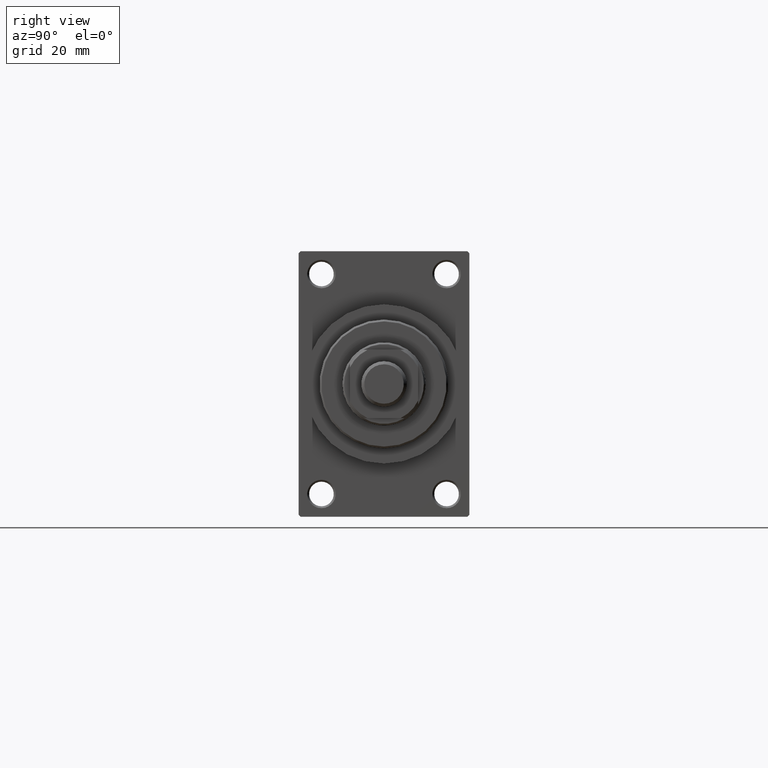
[diagram: clean part render]
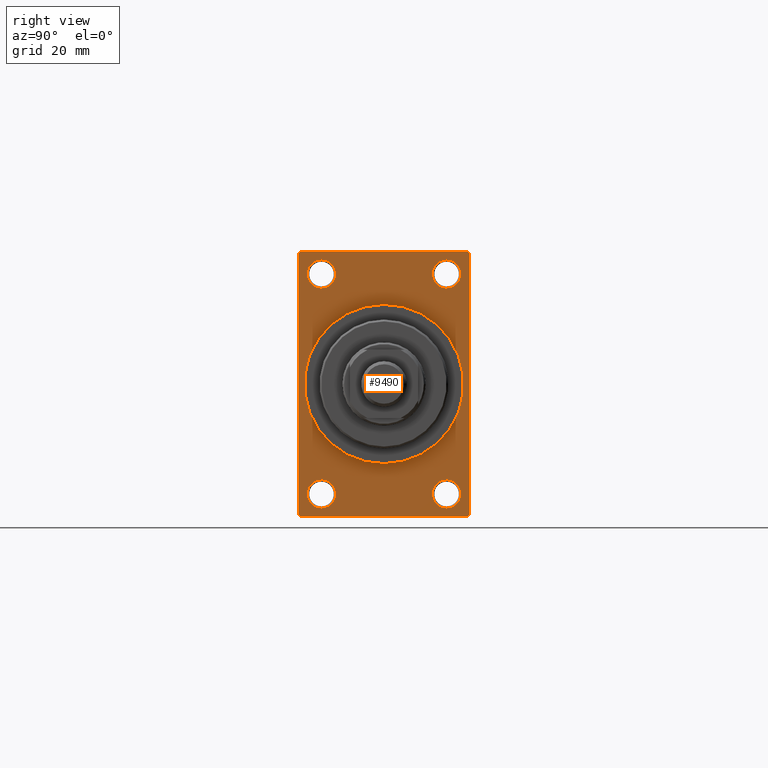
[diagram: same view with one face highlighted and labeled with its STEP entity id]
A machine part, right view. The second image highlights one B-rep face of the part: STEP entity #9490.
In plain terms, the highlighted planar face has unit normal (-1, 0, 0).
Its self-contained STEP definition (entity closure, byte-faithful):
#12 = VECTOR ( 'NONE', #12271, 1000.000000000000000 ) ;
#63 = ORIENTED_EDGE ( 'NONE', *, *, #22220, .T. ) ;
#110 = DIRECTION ( 'NONE',  ( 0.000000000000000000, 0.000000000000000000, 1.000000000000000000 ) ) ;
#245 = DIRECTION ( 'NONE',  ( 0.000000000000000000, 0.000000000000000000, 1.000000000000000000 ) ) ;
#655 = CIRCLE ( 'NONE', #41425, 3.750000000000076383 ) ;
#1733 = CARTESIAN_POINT ( 'NONE',  ( 113.0000000000000142, 0.000000000000000000, 21.00000000000000000 ) ) ;
#1816 = AXIS2_PLACEMENT_3D ( 'NONE', #40690, #18522, #245 ) ;
#2661 = FACE_BOUND ( 'NONE', #28646, .T. ) ;
#3254 = ORIENTED_EDGE ( 'NONE', *, *, #44429, .F. ) ;
#3475 = ORIENTED_EDGE ( 'NONE', *, *, #36655, .T. ) ;
#3702 = EDGE_CURVE ( 'NONE', #28383, #31641, #9673, .T. ) ;
#4493 = ORIENTED_EDGE ( 'NONE', *, *, #20289, .T. ) ;
#4852 = CARTESIAN_POINT ( 'NONE',  ( 113.0000000000000142, 0.000000000000000000, 0.000000000000000000 ) ) ;
#5793 = DIRECTION ( 'NONE',  ( -1.000000000000000000, 0.000000000000000000, -0.000000000000000000 ) ) ;
#5955 = EDGE_CURVE ( 'NONE', #6870, #15759, #27437, .T. ) ;
#6023 = FACE_BOUND ( 'NONE', #44397, .T. ) ;
#6133 = LINE ( 'NONE', #39386, #22781 ) ;
#6548 = DIRECTION ( 'NONE',  ( 0.000000000000000000, 0.000000000000000000, 1.000000000000000000 ) ) ;
#6727 = DIRECTION ( 'NONE',  ( -1.000000000000000000, -0.000000000000000000, -0.000000000000000000 ) ) ;
#6870 = VERTEX_POINT ( 'NONE', #38291 ) ;
#7520 = CARTESIAN_POINT ( 'NONE',  ( 113.0000000000000142, -22.50000000000000355, 35.00000000000000000 ) ) ;
#7997 = VERTEX_POINT ( 'NONE', #27884 ) ;
#8207 = VERTEX_POINT ( 'NONE', #42060 ) ;
#8293 = DIRECTION ( 'NONE',  ( 0.000000000000000000, 0.000000000000000000, 1.000000000000000000 ) ) ;
#8477 = DIRECTION ( 'NONE',  ( 0.000000000000000000, 0.000000000000000000, -1.000000000000000000 ) ) ;
#9422 = EDGE_CURVE ( 'NONE', #27915, #14437, #655, .T. ) ;
#9490 = ADVANCED_FACE ( 'NONE', ( #27933, #6023, #10124, #35894, #2661, #9638 ), #35424, .F. ) ;
#9638 = FACE_OUTER_BOUND ( 'NONE', #9661, .T. ) ;
#9661 = EDGE_LOOP ( 'NONE', ( #18967, #16410, #3254, #63, #36176, #33271, #26100, #4493 ) ) ;
#9673 = CIRCLE ( 'NONE', #30411, 21.00000000000000000 ) ;
#10124 = FACE_BOUND ( 'NONE', #44815, .T. ) ;
#10483 = DIRECTION ( 'NONE',  ( 0.000000000000000000, 0.000000000000000000, 1.000000000000000000 ) ) ;
#10535 = CARTESIAN_POINT ( 'NONE',  ( 113.0000000000000142, 16.50000000000000000, -32.75000000000007105 ) ) ;
#10677 = DIRECTION ( 'NONE',  ( -1.000000000000000000, -0.000000000000000000, -0.000000000000000000 ) ) ;
#10686 = DIRECTION ( 'NONE',  ( -1.000000000000000000, -0.000000000000000000, -0.000000000000000000 ) ) ;
#11681 = CARTESIAN_POINT ( 'NONE',  ( 113.0000000000000142, -16.50000000000000000, 29.00000000000000711 ) ) ;
#11792 = CIRCLE ( 'NONE', #1816, 3.750000000000069278 ) ;
#12057 = VERTEX_POINT ( 'NONE', #17071 ) ;
#12080 = DIRECTION ( 'NONE',  ( 1.000000000000000000, 0.000000000000000000, 0.000000000000000000 ) ) ;
#12271 = DIRECTION ( 'NONE',  ( 0.000000000000000000, 0.000000000000000000, -1.000000000000000000 ) ) ;
#12574 = ORIENTED_EDGE ( 'NONE', *, *, #9422, .T. ) ;
#12863 = LINE ( 'NONE', #20323, #16027 ) ;
#12894 = CARTESIAN_POINT ( 'NONE',  ( 113.0000000000000142, -16.50000000000000000, 32.75000000000007816 ) ) ;
#12908 = CARTESIAN_POINT ( 'NONE',  ( 113.0000000000000142, 2.571758278209441661E-15, -21.00000000000000000 ) ) ;
#12923 = VERTEX_POINT ( 'NONE', #12894 ) ;
#12928 = EDGE_LOOP ( 'NONE', ( #3475, #30415 ) ) ;
#13057 = DIRECTION ( 'NONE',  ( -1.000000000000000000, -0.000000000000000000, -0.000000000000000000 ) ) ;
#13187 = EDGE_CURVE ( 'NONE', #29028, #12923, #32283, .T. ) ;
#13334 = VERTEX_POINT ( 'NONE', #31610 ) ;
#13950 = EDGE_CURVE ( 'NONE', #8207, #12057, #17506, .T. ) ;
#14046 = DIRECTION ( 'NONE',  ( 0.000000000000000000, 0.000000000000000000, 1.000000000000000000 ) ) ;
#14065 = DIRECTION ( 'NONE',  ( 0.000000000000000000, -1.000000000000000000, 0.000000000000000000 ) ) ;
#14069 = CIRCLE ( 'NONE', #26392, 3.750000000000076383 ) ;
#14076 = ORIENTED_EDGE ( 'NONE', *, *, #36871, .T. ) ;
#14139 = CARTESIAN_POINT ( 'NONE',  ( 113.0000000000000142, -21.99999999999998934, -35.00000000000000000 ) ) ;
#14437 = VERTEX_POINT ( 'NONE', #20711 ) ;
#15139 = AXIS2_PLACEMENT_3D ( 'NONE', #40331, #10686, #110 ) ;
#15276 = AXIS2_PLACEMENT_3D ( 'NONE', #31372, #23906, #35236 ) ;
#15440 = LINE ( 'NONE', #7520, #26874 ) ;
#15759 = VERTEX_POINT ( 'NONE', #24404 ) ;
#15860 = CARTESIAN_POINT ( 'NONE',  ( 113.0000000000000142, 22.49999999999999645, 35.00000000000000000 ) ) ;
#15968 = DIRECTION ( 'NONE',  ( 0.000000000000000000, -1.000000000000000000, 0.000000000000000000 ) ) ;
#16027 = VECTOR ( 'NONE', #41557, 1000.000000000000114 ) ;
#16097 = VECTOR ( 'NONE', #15968, 1000.000000000000000 ) ;
#16358 = VERTEX_POINT ( 'NONE', #39898 ) ;
#16410 = ORIENTED_EDGE ( 'NONE', *, *, #13950, .T. ) ;
#17071 = CARTESIAN_POINT ( 'NONE',  ( 113.0000000000000142, -21.99999999999997513, -35.00000000000000000 ) ) ;
#17325 = DIRECTION ( 'NONE',  ( -0.000000000000000000, 0.000000000000000000, 1.000000000000000000 ) ) ;
#17506 = LINE ( 'NONE', #14139, #31429 ) ;
#17887 = CIRCLE ( 'NONE', #29455, 3.750000000000072831 ) ;
#18522 = DIRECTION ( 'NONE',  ( -1.000000000000000000, -0.000000000000000000, -0.000000000000000000 ) ) ;
#18967 = ORIENTED_EDGE ( 'NONE', *, *, #45631, .T. ) ;
#19786 = VECTOR ( 'NONE', #24138, 1000.000000000000114 ) ;
#20289 = EDGE_CURVE ( 'NONE', #16358, #26834, #39806, .T. ) ;
#20323 = CARTESIAN_POINT ( 'NONE',  ( 113.0000000000000142, 22.49999999999999645, -34.50000000000000000 ) ) ;
#20449 = EDGE_CURVE ( 'NONE', #31641, #28383, #36732, .T. ) ;
#20711 = CARTESIAN_POINT ( 'NONE',  ( 113.0000000000000142, 16.50000000000000000, -25.24999999999992184 ) ) ;
#21323 = AXIS2_PLACEMENT_3D ( 'NONE', #4852, #12080, #27451 ) ;
#21987 = CARTESIAN_POINT ( 'NONE',  ( 113.0000000000000142, 16.50000000000000000, -28.99999999999999289 ) ) ;
#22220 = EDGE_CURVE ( 'NONE', #40325, #44062, #12863, .T. ) ;
#22781 = VECTOR ( 'NONE', #14065, 1000.000000000000000 ) ;
#22913 = CARTESIAN_POINT ( 'NONE',  ( 113.0000000000000142, 21.99999999999999645, 35.00000000000000000 ) ) ;
#22946 = VERTEX_POINT ( 'NONE', #37722 ) ;
#23227 = CARTESIAN_POINT ( 'NONE',  ( 113.0000000000000142, 21.99999999999999645, -35.00000000000000000 ) ) ;
#23906 = DIRECTION ( 'NONE',  ( -1.000000000000000000, -0.000000000000000000, -0.000000000000000000 ) ) ;
#23990 = EDGE_CURVE ( 'NONE', #13334, #7997, #36057, .T. ) ;
#24053 = EDGE_CURVE ( 'NONE', #22946, #25069, #32075, .T. ) ;
#24138 = DIRECTION ( 'NONE',  ( -0.000000000000000000, -0.7071067811865474617, -0.7071067811865474617 ) ) ;
#24180 = ORIENTED_EDGE ( 'NONE', *, *, #13187, .T. ) ;
#24404 = CARTESIAN_POINT ( 'NONE',  ( 113.0000000000000142, 16.50000000000000000, 25.24999999999993250 ) ) ;
#24910 = EDGE_CURVE ( 'NONE', #25069, #16358, #27063, .T. ) ;
#24986 = DIRECTION ( 'NONE',  ( 0.000000000000000000, 0.7071067811865376918, -0.7071067811865574537 ) ) ;
#25069 = VERTEX_POINT ( 'NONE', #22913 ) ;
#25099 = DIRECTION ( 'NONE',  ( 0.000000000000000000, -0.7071067811865474617, 0.7071067811865474617 ) ) ;
#26100 = ORIENTED_EDGE ( 'NONE', *, *, #24910, .T. ) ;
#26392 = AXIS2_PLACEMENT_3D ( 'NONE', #36116, #6727, #33460 ) ;
#26765 = DIRECTION ( 'NONE',  ( 1.000000000000000000, 0.000000000000000000, 0.000000000000000000 ) ) ;
#26834 = VERTEX_POINT ( 'NONE', #29340 ) ;
#26874 = VECTOR ( 'NONE', #37385, 1000.000000000000000 ) ;
#27063 = LINE ( 'NONE', #38628, #16097 ) ;
#27353 = CARTESIAN_POINT ( 'NONE',  ( 113.0000000000000142, 16.50000000000000000, -28.99999999999999289 ) ) ;
#27437 = CIRCLE ( 'NONE', #15139, 3.750000000000072831 ) ;
#27451 = DIRECTION ( 'NONE',  ( 0.000000000000000000, 0.000000000000000000, -1.000000000000000000 ) ) ;
#27884 = CARTESIAN_POINT ( 'NONE',  ( 113.0000000000000142, -16.50000000000000000, -25.24999999999992184 ) ) ;
#27915 = VERTEX_POINT ( 'NONE', #10535 ) ;
#27933 = FACE_BOUND ( 'NONE', #39738, .T. ) ;
#28383 = VERTEX_POINT ( 'NONE', #1733 ) ;
#28574 = EDGE_CURVE ( 'NONE', #22946, #44062, #42576, .T. ) ;
#28646 = EDGE_LOOP ( 'NONE', ( #45327, #40501 ) ) ;
#29028 = VERTEX_POINT ( 'NONE', #36747 ) ;
#29340 = CARTESIAN_POINT ( 'NONE',  ( 113.0000000000000142, -22.50000000000000355, 34.50000000000000000 ) ) ;
#29455 = AXIS2_PLACEMENT_3D ( 'NONE', #43152, #13057, #6548 ) ;
#30409 = ORIENTED_EDGE ( 'NONE', *, *, #36927, .T. ) ;
#30411 = AXIS2_PLACEMENT_3D ( 'NONE', #45078, #26765, #8477 ) ;
#30415 = ORIENTED_EDGE ( 'NONE', *, *, #5955, .T. ) ;
#30647 = AXIS2_PLACEMENT_3D ( 'NONE', #31315, #5793, #17325 ) ;
#31315 = CARTESIAN_POINT ( 'NONE',  ( 113.0000000000000142, 0.000000000000000000, 0.000000000000000000 ) ) ;
#31372 = CARTESIAN_POINT ( 'NONE',  ( 113.0000000000000142, -16.50000000000000000, -28.99999999999999289 ) ) ;
#31429 = VECTOR ( 'NONE', #24986, 999.9999999999998863 ) ;
#31610 = CARTESIAN_POINT ( 'NONE',  ( 113.0000000000000142, -16.50000000000000000, -32.75000000000007105 ) ) ;
#31641 = VERTEX_POINT ( 'NONE', #12908 ) ;
#31673 = EDGE_CURVE ( 'NONE', #14437, #27915, #36230, .T. ) ;
#32075 = LINE ( 'NONE', #35709, #42235 ) ;
#32283 = CIRCLE ( 'NONE', #36930, 3.750000000000069278 ) ;
#33271 = ORIENTED_EDGE ( 'NONE', *, *, #24053, .T. ) ;
#33460 = DIRECTION ( 'NONE',  ( 0.000000000000000000, 0.000000000000000000, 1.000000000000000000 ) ) ;
#33824 = DIRECTION ( 'NONE',  ( -1.000000000000000000, -0.000000000000000000, -0.000000000000000000 ) ) ;
#35236 = DIRECTION ( 'NONE',  ( 0.000000000000000000, 0.000000000000000000, 1.000000000000000000 ) ) ;
#35424 = PLANE ( 'NONE',  #30647 ) ;
#35709 = CARTESIAN_POINT ( 'NONE',  ( 113.0000000000000142, 21.99999999999999645, 35.00000000000000000 ) ) ;
#35894 = FACE_BOUND ( 'NONE', #12928, .T. ) ;
#36057 = CIRCLE ( 'NONE', #15276, 3.750000000000076383 ) ;
#36116 = CARTESIAN_POINT ( 'NONE',  ( 113.0000000000000142, -16.50000000000000000, -28.99999999999999289 ) ) ;
#36176 = ORIENTED_EDGE ( 'NONE', *, *, #28574, .F. ) ;
#36230 = CIRCLE ( 'NONE', #37005, 3.750000000000076383 ) ;
#36655 = EDGE_CURVE ( 'NONE', #15759, #6870, #17887, .T. ) ;
#36732 = CIRCLE ( 'NONE', #21323, 21.00000000000000000 ) ;
#36747 = CARTESIAN_POINT ( 'NONE',  ( 113.0000000000000142, -16.50000000000000000, 25.24999999999993960 ) ) ;
#36871 = EDGE_CURVE ( 'NONE', #7997, #13334, #14069, .T. ) ;
#36927 = EDGE_CURVE ( 'NONE', #12923, #29028, #11792, .T. ) ;
#36930 = AXIS2_PLACEMENT_3D ( 'NONE', #11681, #33824, #8293 ) ;
#37005 = AXIS2_PLACEMENT_3D ( 'NONE', #27353, #42057, #10483 ) ;
#37087 = CARTESIAN_POINT ( 'NONE',  ( 113.0000000000000142, 22.49999999999999645, -34.50000000000000000 ) ) ;
#37385 = DIRECTION ( 'NONE',  ( 0.000000000000000000, 0.000000000000000000, -1.000000000000000000 ) ) ;
#37722 = CARTESIAN_POINT ( 'NONE',  ( 113.0000000000000142, 22.49999999999999645, 34.50000000000000000 ) ) ;
#38291 = CARTESIAN_POINT ( 'NONE',  ( 113.0000000000000142, 16.50000000000000000, 32.75000000000007816 ) ) ;
#38628 = CARTESIAN_POINT ( 'NONE',  ( 113.0000000000000142, 22.49999999999999645, 35.00000000000000000 ) ) ;
#39386 = CARTESIAN_POINT ( 'NONE',  ( 113.0000000000000142, 22.49999999999999645, -35.00000000000000000 ) ) ;
#39738 = EDGE_LOOP ( 'NONE', ( #24180, #30409 ) ) ;
#39806 = LINE ( 'NONE', #46294, #19786 ) ;
#39898 = CARTESIAN_POINT ( 'NONE',  ( 113.0000000000000142, -21.99999999999998934, 35.00000000000000000 ) ) ;
#40325 = VERTEX_POINT ( 'NONE', #23227 ) ;
#40331 = CARTESIAN_POINT ( 'NONE',  ( 113.0000000000000142, 16.50000000000000000, 29.00000000000000355 ) ) ;
#40501 = ORIENTED_EDGE ( 'NONE', *, *, #20449, .F. ) ;
#40690 = CARTESIAN_POINT ( 'NONE',  ( 113.0000000000000142, -16.50000000000000000, 29.00000000000000711 ) ) ;
#41425 = AXIS2_PLACEMENT_3D ( 'NONE', #21987, #10677, #14046 ) ;
#41557 = DIRECTION ( 'NONE',  ( -0.000000000000000000, 0.7071067811865474617, 0.7071067811865474617 ) ) ;
#42057 = DIRECTION ( 'NONE',  ( -1.000000000000000000, -0.000000000000000000, -0.000000000000000000 ) ) ;
#42060 = CARTESIAN_POINT ( 'NONE',  ( 113.0000000000000142, -22.50000000000000355, -34.49999999999997158 ) ) ;
#42235 = VECTOR ( 'NONE', #25099, 1000.000000000000114 ) ;
#42576 = LINE ( 'NONE', #15860, #12 ) ;
#43152 = CARTESIAN_POINT ( 'NONE',  ( 113.0000000000000142, 16.50000000000000000, 29.00000000000000355 ) ) ;
#43528 = ORIENTED_EDGE ( 'NONE', *, *, #23990, .T. ) ;
#44062 = VERTEX_POINT ( 'NONE', #37087 ) ;
#44397 = EDGE_LOOP ( 'NONE', ( #43528, #14076 ) ) ;
#44429 = EDGE_CURVE ( 'NONE', #40325, #12057, #6133, .T. ) ;
#44815 = EDGE_LOOP ( 'NONE', ( #12574, #47123 ) ) ;
#45078 = CARTESIAN_POINT ( 'NONE',  ( 113.0000000000000142, 0.000000000000000000, 0.000000000000000000 ) ) ;
#45327 = ORIENTED_EDGE ( 'NONE', *, *, #3702, .F. ) ;
#45631 = EDGE_CURVE ( 'NONE', #26834, #8207, #15440, .T. ) ;
#46294 = CARTESIAN_POINT ( 'NONE',  ( 113.0000000000000142, -22.50000000000000355, 34.50000000000000000 ) ) ;
#47123 = ORIENTED_EDGE ( 'NONE', *, *, #31673, .T. ) ;